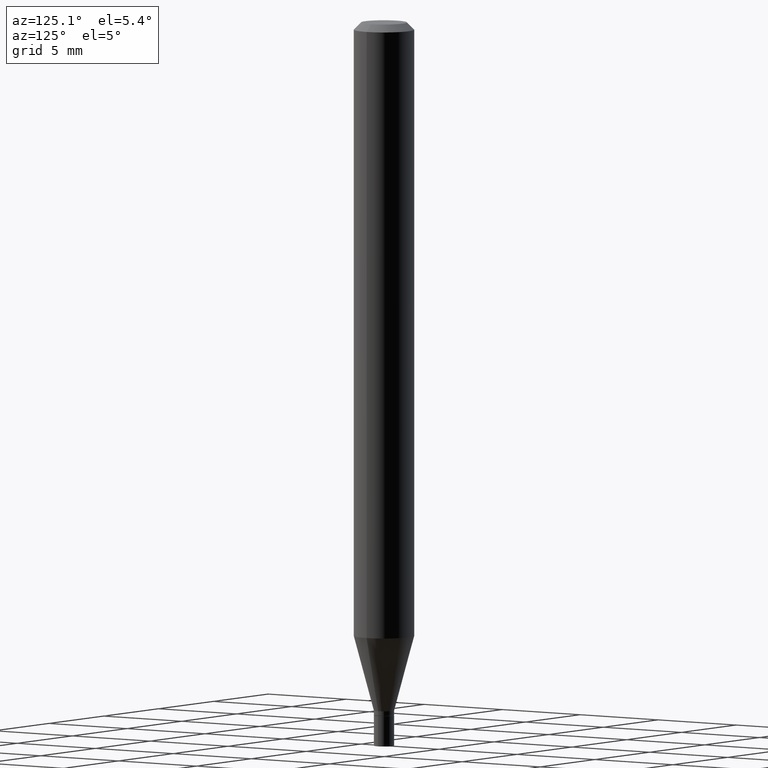
[diagram: clean part render]
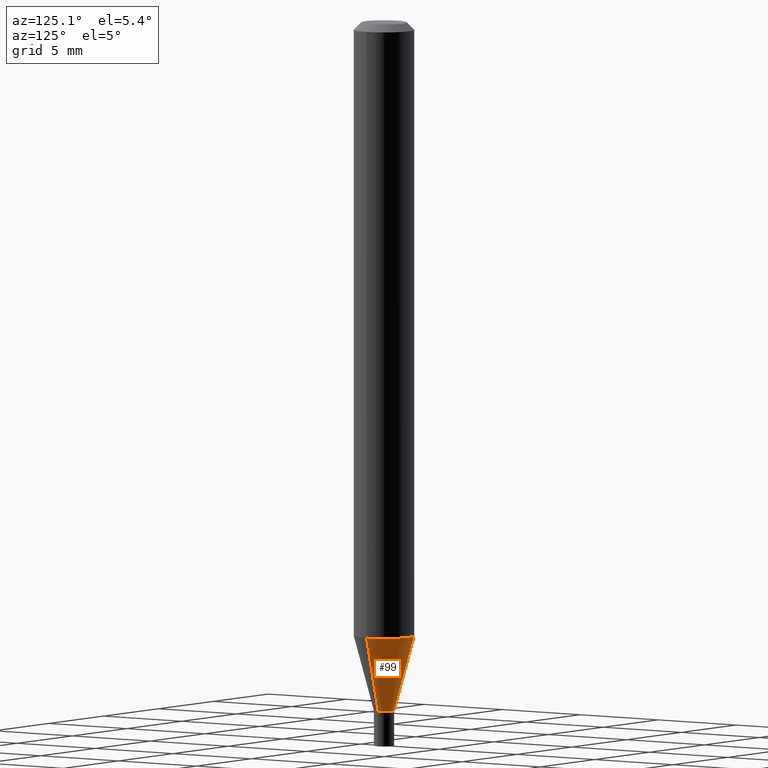
[diagram: same view with one face highlighted and labeled with its STEP entity id]
A machine part, auxiliary view. The second image highlights one B-rep face of the part: STEP entity #99.
In plain terms, the highlighted conical surface has half-angle 15 deg.
Its self-contained STEP definition (entity closure, byte-faithful):
#6 = ORIENTED_EDGE ( 'NONE', *, *, #185, .F. ) ;
#16 = DIRECTION ( 'NONE',  ( 0.2588190451025217387, 1.565188264969619207E-15, 0.9659258262890679791 ) ) ;
#23 = CARTESIAN_POINT ( 'NONE',  ( 3.489683986426190072E-29, -4.982343870529169189E-15, -1.427000000000000046 ) ) ;
#62 = DIRECTION ( 'NONE',  ( -2.445468806185136597E-29, 3.491481338843145583E-15, 1.000000000000000000 ) ) ;
#67 = EDGE_CURVE ( 'NONE', #72, #295, #279, .T. ) ;
#68 = VERTEX_POINT ( 'NONE', #190 ) ;
#72 = VERTEX_POINT ( 'NONE', #93 ) ;
#80 = CARTESIAN_POINT ( 'NONE',  ( 0.06250000000000000000, -4.878018029249550992E-15, -1.272119891485891996 ) ) ;
#93 = CARTESIAN_POINT ( 'NONE',  ( -0.02099999999999993192, -4.415311774031822362E-15, -1.427000000000000046 ) ) ;
#97 = DIRECTION ( 'NONE',  ( 1.000000000000000000, -6.982962677686263555E-15, 0.000000000000000000 ) ) ;
#99 = ADVANCED_FACE ( 'NONE', ( #394 ), #143, .T. ) ;
#122 = CARTESIAN_POINT ( 'NONE',  ( -0.02099999999999993192, -4.833129896019548018E-15, -1.427000000000000046 ) ) ;
#143 = CONICAL_SURFACE ( 'NONE', #326, 0.02099999999999993192, 0.2617993877991504625 ) ;
#148 = VERTEX_POINT ( 'NONE', #80 ) ;
#152 = ORIENTED_EDGE ( 'NONE', *, *, #67, .T. ) ;
#158 = CARTESIAN_POINT ( 'NONE',  ( 3.110929512356370285E-29, -4.441582861894159323E-15, -1.272119891485891996 ) ) ;
#168 = CIRCLE ( 'NONE', #313, 0.02099999999999993192 ) ;
#180 = VECTOR ( 'NONE', #456, 39.37007874015748854 ) ;
#185 = EDGE_CURVE ( 'NONE', #68, #148, #203, .T. ) ;
#190 = CARTESIAN_POINT ( 'NONE',  ( 0.02099999999999993192, -5.128986086760580222E-15, -1.427000000000000046 ) ) ;
#203 = LINE ( 'NONE', #348, #362 ) ;
#225 = EDGE_CURVE ( 'NONE', #148, #295, #363, .T. ) ;
#230 = EDGE_LOOP ( 'NONE', ( #311, #152, #444, #6 ) ) ;
#232 = CARTESIAN_POINT ( 'NONE',  ( -0.06250000000000000000, -3.997493652044096706E-15, -1.272119891485891996 ) ) ;
#265 = DIRECTION ( 'NONE',  ( 1.000000000000000000, -6.982962677686263555E-15, 0.000000000000000000 ) ) ;
#279 = LINE ( 'NONE', #122, #180 ) ;
#295 = VERTEX_POINT ( 'NONE', #232 ) ;
#299 = CARTESIAN_POINT ( 'NONE',  ( 3.489683986426190072E-29, -4.982343870529169189E-15, -1.427000000000000046 ) ) ;
#311 = ORIENTED_EDGE ( 'NONE', *, *, #324, .T. ) ;
#313 = AXIS2_PLACEMENT_3D ( 'NONE', #299, #342, #265 ) ;
#324 = EDGE_CURVE ( 'NONE', #68, #72, #168, .T. ) ;
#326 = AXIS2_PLACEMENT_3D ( 'NONE', #23, #62, #97 ) ;
#342 = DIRECTION ( 'NONE',  ( -2.445468806185136597E-29, 3.491481338843145583E-15, 1.000000000000000000 ) ) ;
#348 = CARTESIAN_POINT ( 'NONE',  ( 0.02099999999999993192, -5.128986086760580222E-15, -1.427000000000000046 ) ) ;
#362 = VECTOR ( 'NONE', #16, 39.37007874015748854 ) ;
#363 = CIRCLE ( 'NONE', #392, 0.06250000000000000000 ) ;
#378 = DIRECTION ( 'NONE',  ( 1.000000000000000000, -6.982962677686262766E-15, 0.000000000000000000 ) ) ;
#392 = AXIS2_PLACEMENT_3D ( 'NONE', #158, #447, #378 ) ;
#394 = FACE_OUTER_BOUND ( 'NONE', #230, .T. ) ;
#444 = ORIENTED_EDGE ( 'NONE', *, *, #225, .F. ) ;
#447 = DIRECTION ( 'NONE',  ( -2.445468806185136597E-29, 3.491481338843145583E-15, 1.000000000000000000 ) ) ;
#456 = DIRECTION ( 'NONE',  ( -0.2588190451025217387, 5.211531920934551042E-15, 0.9659258262890679791 ) ) ;